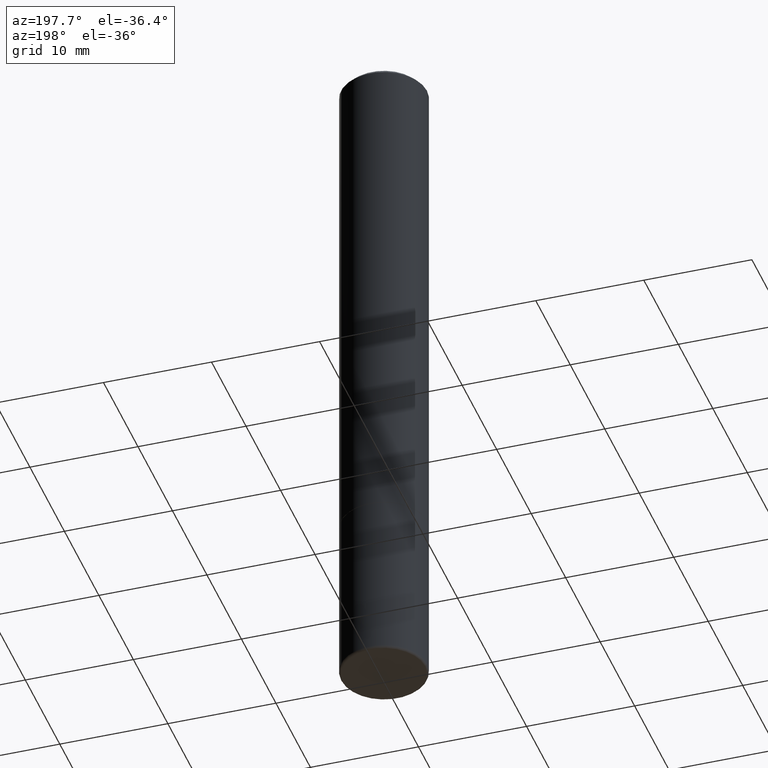
[diagram: clean part render]
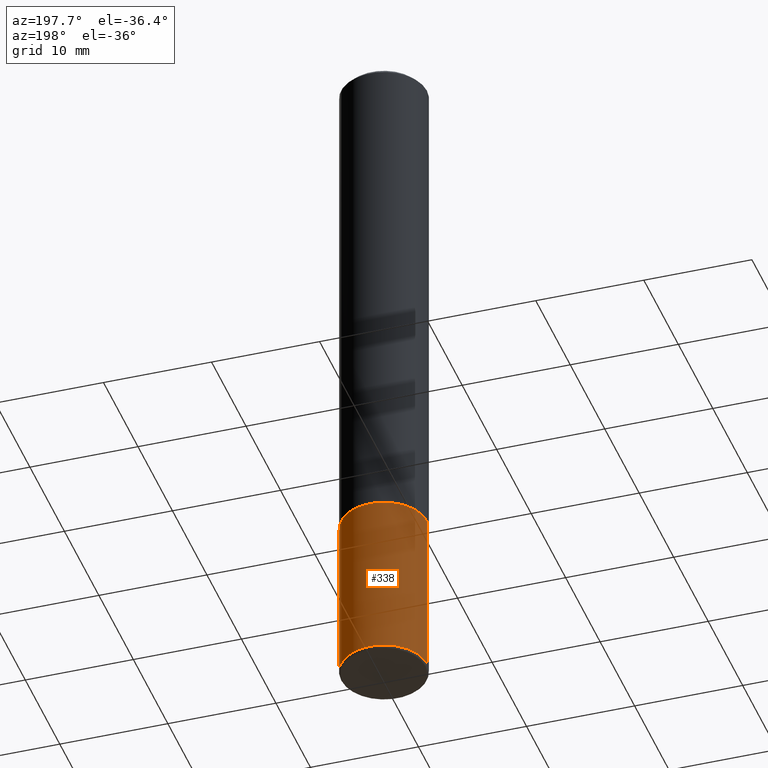
[diagram: same view with one face highlighted and labeled with its STEP entity id]
A machine part, auxiliary view. The second image highlights one B-rep face of the part: STEP entity #338.
In plain terms, the highlighted cylindrical surface (partial cylindrical patch) has radius 3.9688 mm, axis along (-0, 0, 1).
Its self-contained STEP definition (entity closure, byte-faithful):
#16 = VERTEX_POINT ( 'NONE', #61 ) ;
#17 = DIRECTION ( 'NONE',  ( -2.445468806185136597E-29, 3.491481338843145583E-15, 1.000000000000000000 ) ) ;
#47 = CARTESIAN_POINT ( 'NONE',  ( 0.1562500000000000000, -1.091087918388479174E-15, 7.619026212181150377E-30 ) ) ;
#50 = CYLINDRICAL_SURFACE ( 'NONE', #223, 0.1562500000000000000 ) ;
#54 = DIRECTION ( 'NONE',  ( -2.445468806185136597E-29, 3.491481338843145583E-15, 1.000000000000000000 ) ) ;
#55 = CARTESIAN_POINT ( 'NONE',  ( 0.000000000000000000, 0.000000000000000000, 0.000000000000000000 ) ) ;
#61 = CARTESIAN_POINT ( 'NONE',  ( 0.1562500000000000000, -7.637615428719378669E-15, -1.875000000000000000 ) ) ;
#62 = EDGE_CURVE ( 'NONE', #138, #329, #387, .T. ) ;
#64 = AXIS2_PLACEMENT_3D ( 'NONE', #279, #54, #312 ) ;
#90 = CARTESIAN_POINT ( 'NONE',  ( 4.585254011597131119E-29, -6.546527510330898707E-15, -1.875000000000000000 ) ) ;
#100 = AXIS2_PLACEMENT_3D ( 'NONE', #90, #341, #139 ) ;
#108 = LINE ( 'NONE', #253, #330 ) ;
#135 = VERTEX_POINT ( 'NONE', #416 ) ;
#138 = VERTEX_POINT ( 'NONE', #222 ) ;
#139 = DIRECTION ( 'NONE',  ( 1.000000000000000000, -6.982962677686269077E-15, 0.000000000000000000 ) ) ;
#174 = LINE ( 'NONE', #47, #283 ) ;
#204 = FACE_OUTER_BOUND ( 'NONE', #218, .T. ) ;
#212 = ORIENTED_EDGE ( 'NONE', *, *, #291, .F. ) ;
#218 = EDGE_LOOP ( 'NONE', ( #269, #366, #212, #400 ) ) ;
#222 = CARTESIAN_POINT ( 'NONE',  ( 0.1562499999999998612, -9.784876452107911678E-15, -2.489999999999999769 ) ) ;
#223 = AXIS2_PLACEMENT_3D ( 'NONE', #55, #17, #236 ) ;
#233 = CIRCLE ( 'NONE', #100, 0.1562500000000000000 ) ;
#234 = DIRECTION ( 'NONE',  ( -2.445468806185136877E-29, 3.491481338843145188E-15, 1.000000000000000000 ) ) ;
#236 = DIRECTION ( 'NONE',  ( 1.000000000000000000, -6.982962677686266711E-15, 4.876176775795936353E-29 ) ) ;
#253 = CARTESIAN_POINT ( 'NONE',  ( -0.1562500000000000000, 1.110223024625156540E-15, -7.685836078523291160E-30 ) ) ;
#260 = EDGE_CURVE ( 'NONE', #138, #16, #174, .T. ) ;
#269 = ORIENTED_EDGE ( 'NONE', *, *, #62, .T. ) ;
#279 = CARTESIAN_POINT ( 'NONE',  ( 6.089217327400989947E-29, -8.693788533719431716E-15, -2.489999999999999769 ) ) ;
#283 = VECTOR ( 'NONE', #234, 39.37007874015748143 ) ;
#287 = DIRECTION ( 'NONE',  ( -2.445468806185136877E-29, 3.491481338843145188E-15, 1.000000000000000000 ) ) ;
#291 = EDGE_CURVE ( 'NONE', #16, #135, #233, .T. ) ;
#312 = DIRECTION ( 'NONE',  ( 1.000000000000000000, -6.982962677686270655E-15, 0.000000000000000000 ) ) ;
#329 = VERTEX_POINT ( 'NONE', #393 ) ;
#330 = VECTOR ( 'NONE', #287, 39.37007874015748143 ) ;
#338 = ADVANCED_FACE ( 'NONE', ( #204 ), #50, .T. ) ;
#341 = DIRECTION ( 'NONE',  ( -2.445468806185136597E-29, 3.491481338843145583E-15, 1.000000000000000000 ) ) ;
#352 = EDGE_CURVE ( 'NONE', #329, #135, #108, .T. ) ;
#366 = ORIENTED_EDGE ( 'NONE', *, *, #352, .T. ) ;
#387 = CIRCLE ( 'NONE', #64, 0.1562499999999999722 ) ;
#393 = CARTESIAN_POINT ( 'NONE',  ( -0.1562499999999998612, -7.583565509094276753E-15, -2.489999999999999769 ) ) ;
#400 = ORIENTED_EDGE ( 'NONE', *, *, #260, .F. ) ;
#416 = CARTESIAN_POINT ( 'NONE',  ( -0.1562500000000000000, -6.509934997400009460E-15, -1.875000000000000000 ) ) ;